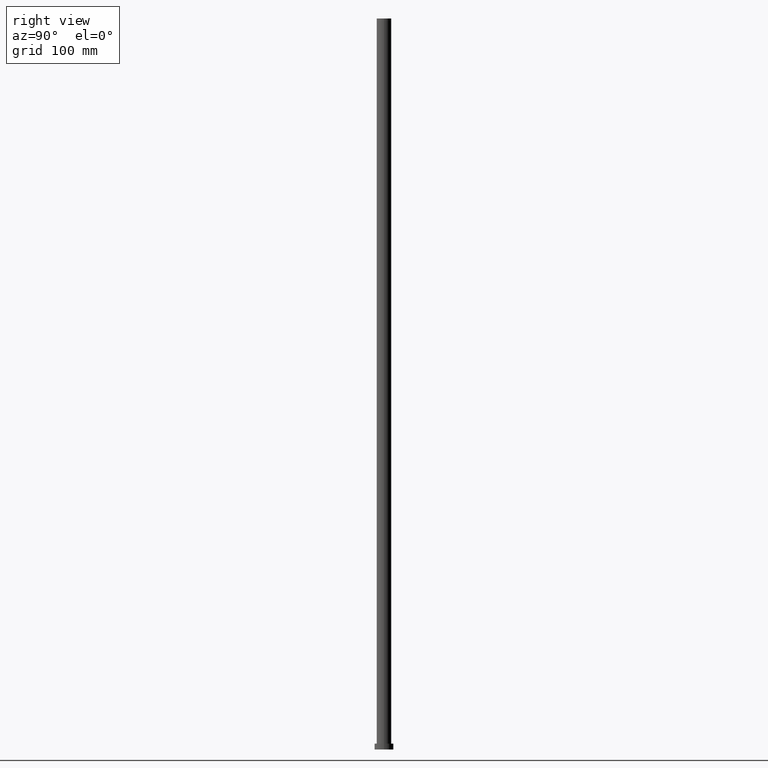
[diagram: clean part render]
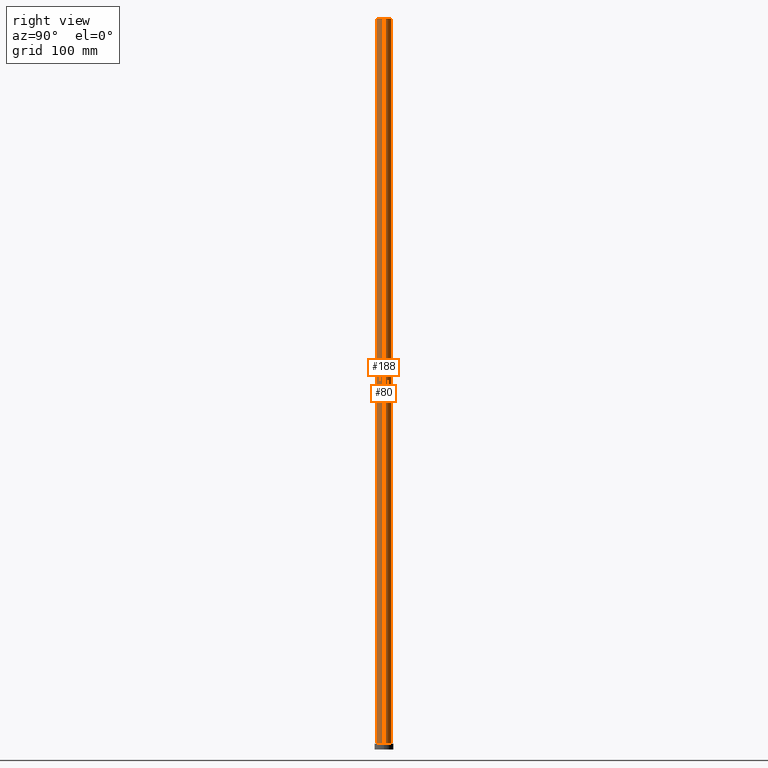
[diagram: same view with one multi-face feature highlighted, each face labeled with its STEP entity id]
A machine part, right view. The highlighted faces form ONE feature: a constant-radius fillet chain: 2 tangent blend faces with common blend radius 10 mm. The faces share edges in the B-rep.
Their STEP definitions:
[1] entity #80 (Cylinder):
#6 = AXIS2_PLACEMENT_3D ( 'NONE', #236, #155, #165 ) ;
#16 = ORIENTED_EDGE ( 'NONE', *, *, #144, .T. ) ;
#28 = CARTESIAN_POINT ( 'NONE',  ( 0.000000000000000000, 0.000000000000000000, 1000.000000000000000 ) ) ;
#32 = EDGE_CURVE ( 'NONE', #245, #120, #103, .T. ) ;
#34 = ORIENTED_EDGE ( 'NONE', *, *, #248, .F. ) ;
#43 = DIRECTION ( 'NONE',  ( -0.000000000000000000, -0.000000000000000000, -1.000000000000000000 ) ) ;
#46 = DIRECTION ( 'NONE',  ( 1.000000000000000000, 0.000000000000000000, 0.000000000000000000 ) ) ;
#56 = ORIENTED_EDGE ( 'NONE', *, *, #191, .T. ) ;
#57 = VERTEX_POINT ( 'NONE', #59 ) ;
#59 = CARTESIAN_POINT ( 'NONE',  ( 10.00000000000000000, 1.224646799147353256E-15, 1000.000000000000000 ) ) ;
#63 = LINE ( 'NONE', #149, #147 ) ;
#80 = ADVANCED_FACE ( 'NONE', ( #111 ), #170, .T. ) ;
#93 = AXIS2_PLACEMENT_3D ( 'NONE', #28, #226, #239 ) ;
#96 = CARTESIAN_POINT ( 'NONE',  ( -10.00000000000000000, 0.000000000000000000, 1000.000000000000000 ) ) ;
#103 = LINE ( 'NONE', #231, #200 ) ;
#107 = CIRCLE ( 'NONE', #189, 10.00000000000000000 ) ;
#111 = FACE_OUTER_BOUND ( 'NONE', #119, .T. ) ;
#113 = CARTESIAN_POINT ( 'NONE',  ( -10.00000000000000000, 0.000000000000000000, 8.000000000000000000 ) ) ;
#119 = EDGE_LOOP ( 'NONE', ( #34, #56, #16, #196 ) ) ;
#120 = VERTEX_POINT ( 'NONE', #113 ) ;
#130 = CARTESIAN_POINT ( 'NONE',  ( 10.00000000000000000, 1.224646799147353256E-15, 8.000000000000000000 ) ) ;
#144 = EDGE_CURVE ( 'NONE', #197, #120, #107, .T. ) ;
#147 = VECTOR ( 'NONE', #43, 1000.000000000000000 ) ;
#149 = CARTESIAN_POINT ( 'NONE',  ( 10.00000000000000000, 1.224646799147353256E-15, 1000.000000000000000 ) ) ;
#151 = DIRECTION ( 'NONE',  ( 0.000000000000000000, 0.000000000000000000, 1.000000000000000000 ) ) ;
#155 = DIRECTION ( 'NONE',  ( -0.000000000000000000, -0.000000000000000000, -1.000000000000000000 ) ) ;
#165 = DIRECTION ( 'NONE',  ( -1.000000000000000000, 0.000000000000000000, 0.000000000000000000 ) ) ;
#170 = CYLINDRICAL_SURFACE ( 'NONE', #6, 10.00000000000000000 ) ;
#186 = CIRCLE ( 'NONE', #93, 10.00000000000000000 ) ;
#189 = AXIS2_PLACEMENT_3D ( 'NONE', #190, #151, #46 ) ;
#190 = CARTESIAN_POINT ( 'NONE',  ( 0.000000000000000000, 0.000000000000000000, 8.000000000000000000 ) ) ;
#191 = EDGE_CURVE ( 'NONE', #57, #197, #63, .T. ) ;
#196 = ORIENTED_EDGE ( 'NONE', *, *, #32, .F. ) ;
#197 = VERTEX_POINT ( 'NONE', #130 ) ;
#200 = VECTOR ( 'NONE', #255, 1000.000000000000000 ) ;
#226 = DIRECTION ( 'NONE',  ( 0.000000000000000000, 0.000000000000000000, 1.000000000000000000 ) ) ;
#231 = CARTESIAN_POINT ( 'NONE',  ( -10.00000000000000000, 0.000000000000000000, 1000.000000000000000 ) ) ;
#236 = CARTESIAN_POINT ( 'NONE',  ( 0.000000000000000000, 0.000000000000000000, 1000.000000000000000 ) ) ;
#239 = DIRECTION ( 'NONE',  ( 1.000000000000000000, 0.000000000000000000, 0.000000000000000000 ) ) ;
#245 = VERTEX_POINT ( 'NONE', #96 ) ;
#248 = EDGE_CURVE ( 'NONE', #57, #245, #186, .T. ) ;
#255 = DIRECTION ( 'NONE',  ( -0.000000000000000000, -0.000000000000000000, -1.000000000000000000 ) ) ;
[2] entity #188 (Cylinder):
#3 = DIRECTION ( 'NONE',  ( -0.000000000000000000, -0.000000000000000000, -1.000000000000000000 ) ) ;
#32 = EDGE_CURVE ( 'NONE', #245, #120, #103, .T. ) ;
#39 = EDGE_CURVE ( 'NONE', #245, #57, #123, .T. ) ;
#43 = DIRECTION ( 'NONE',  ( -0.000000000000000000, -0.000000000000000000, -1.000000000000000000 ) ) ;
#57 = VERTEX_POINT ( 'NONE', #59 ) ;
#59 = CARTESIAN_POINT ( 'NONE',  ( 10.00000000000000000, 1.224646799147353256E-15, 1000.000000000000000 ) ) ;
#63 = LINE ( 'NONE', #149, #147 ) ;
#78 = ORIENTED_EDGE ( 'NONE', *, *, #39, .F. ) ;
#81 = ORIENTED_EDGE ( 'NONE', *, *, #159, .T. ) ;
#96 = CARTESIAN_POINT ( 'NONE',  ( -10.00000000000000000, 0.000000000000000000, 1000.000000000000000 ) ) ;
#103 = LINE ( 'NONE', #231, #200 ) ;
#104 = ORIENTED_EDGE ( 'NONE', *, *, #32, .T. ) ;
#112 = AXIS2_PLACEMENT_3D ( 'NONE', #173, #148, #218 ) ;
#113 = CARTESIAN_POINT ( 'NONE',  ( -10.00000000000000000, 0.000000000000000000, 8.000000000000000000 ) ) ;
#120 = VERTEX_POINT ( 'NONE', #113 ) ;
#123 = CIRCLE ( 'NONE', #222, 10.00000000000000000 ) ;
#130 = CARTESIAN_POINT ( 'NONE',  ( 10.00000000000000000, 1.224646799147353256E-15, 8.000000000000000000 ) ) ;
#131 = FACE_OUTER_BOUND ( 'NONE', #180, .T. ) ;
#147 = VECTOR ( 'NONE', #43, 1000.000000000000000 ) ;
#148 = DIRECTION ( 'NONE',  ( 0.000000000000000000, 0.000000000000000000, 1.000000000000000000 ) ) ;
#149 = CARTESIAN_POINT ( 'NONE',  ( 10.00000000000000000, 1.224646799147353256E-15, 1000.000000000000000 ) ) ;
#152 = AXIS2_PLACEMENT_3D ( 'NONE', #185, #3, #233 ) ;
#159 = EDGE_CURVE ( 'NONE', #120, #197, #238, .T. ) ;
#167 = DIRECTION ( 'NONE',  ( 0.000000000000000000, 0.000000000000000000, 1.000000000000000000 ) ) ;
#173 = CARTESIAN_POINT ( 'NONE',  ( 0.000000000000000000, 0.000000000000000000, 8.000000000000000000 ) ) ;
#180 = EDGE_LOOP ( 'NONE', ( #224, #78, #104, #81 ) ) ;
#185 = CARTESIAN_POINT ( 'NONE',  ( 0.000000000000000000, 0.000000000000000000, 1000.000000000000000 ) ) ;
#188 = ADVANCED_FACE ( 'NONE', ( #131 ), #203, .T. ) ;
#191 = EDGE_CURVE ( 'NONE', #57, #197, #63, .T. ) ;
#197 = VERTEX_POINT ( 'NONE', #130 ) ;
#200 = VECTOR ( 'NONE', #255, 1000.000000000000000 ) ;
#203 = CYLINDRICAL_SURFACE ( 'NONE', #152, 10.00000000000000000 ) ;
#218 = DIRECTION ( 'NONE',  ( 1.000000000000000000, 0.000000000000000000, 0.000000000000000000 ) ) ;
#219 = CARTESIAN_POINT ( 'NONE',  ( 0.000000000000000000, 0.000000000000000000, 1000.000000000000000 ) ) ;
#220 = DIRECTION ( 'NONE',  ( 1.000000000000000000, 0.000000000000000000, 0.000000000000000000 ) ) ;
#222 = AXIS2_PLACEMENT_3D ( 'NONE', #219, #167, #220 ) ;
#224 = ORIENTED_EDGE ( 'NONE', *, *, #191, .F. ) ;
#231 = CARTESIAN_POINT ( 'NONE',  ( -10.00000000000000000, 0.000000000000000000, 1000.000000000000000 ) ) ;
#233 = DIRECTION ( 'NONE',  ( -1.000000000000000000, 0.000000000000000000, 0.000000000000000000 ) ) ;
#238 = CIRCLE ( 'NONE', #112, 10.00000000000000000 ) ;
#245 = VERTEX_POINT ( 'NONE', #96 ) ;
#255 = DIRECTION ( 'NONE',  ( -0.000000000000000000, -0.000000000000000000, -1.000000000000000000 ) ) ;